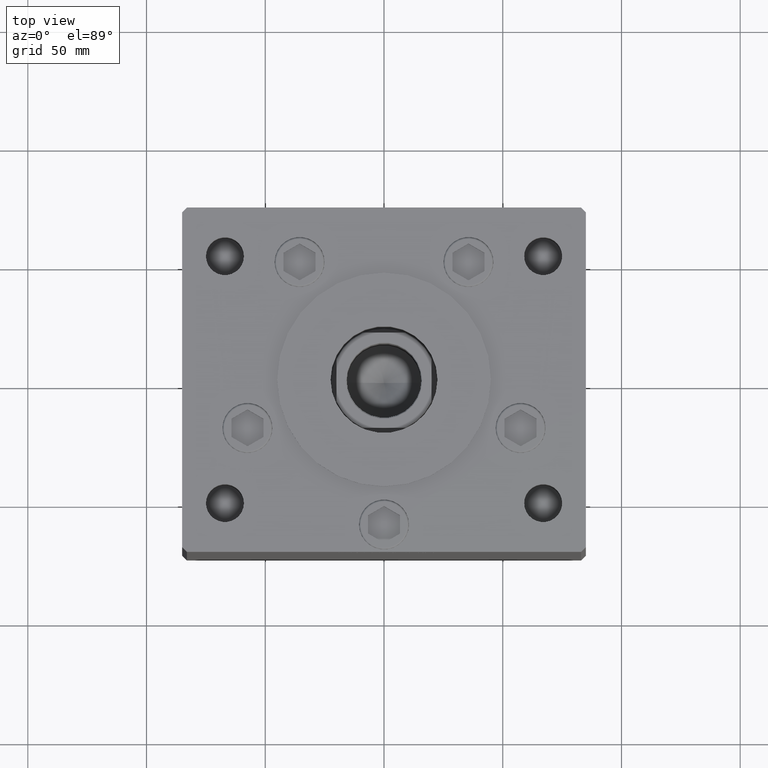
[diagram: clean part render]
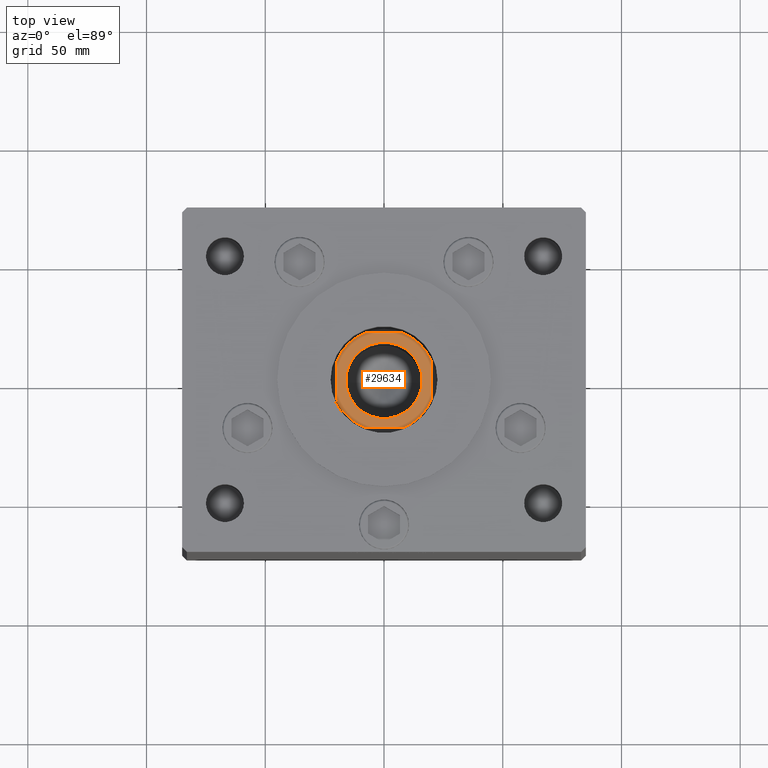
[diagram: same view with one face highlighted and labeled with its STEP entity id]
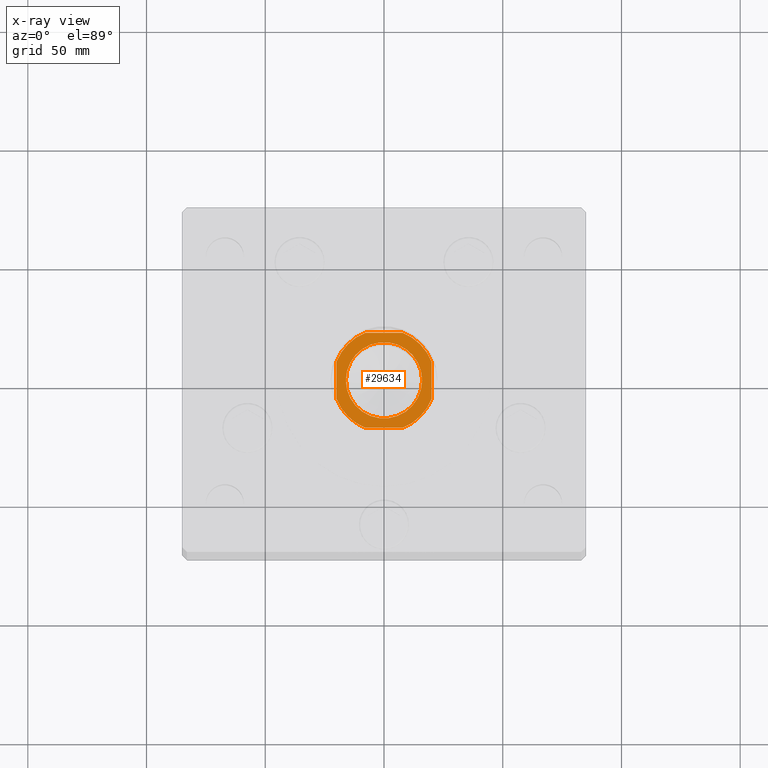
[diagram: x-ray of the same camera — body ghosted, the highlighted face saturated]
A machine part, top view. The second image highlights one B-rep face of the part: STEP entity #29634.
The next image is the same camera in x-ray: the body ghosted, the highlighted face saturated — about 0% of this face is hidden behind the body in this view.
In plain terms, the highlighted planar face has unit normal (0, 0, 1).
Its self-contained STEP definition (entity closure, byte-faithful):
#171 = EDGE_CURVE ( 'NONE', #46019, #31502, #42669, .T. ) ;
#1740 = VERTEX_POINT ( 'NONE', #17078 ) ;
#3692 = EDGE_CURVE ( 'NONE', #13541, #37752, #32314, .T. ) ;
#3745 = EDGE_CURVE ( 'NONE', #10714, #36882, #43618, .T. ) ;
#4019 = DIRECTION ( 'NONE',  ( 1.000000000000000000, 0.000000000000000000, 0.000000000000000000 ) ) ;
#4209 = DIRECTION ( 'NONE',  ( 1.000000000000000000, 0.000000000000000000, 0.000000000000000000 ) ) ;
#4545 = FACE_BOUND ( 'NONE', #17465, .T. ) ;
#5496 = DIRECTION ( 'NONE',  ( 1.000000000000000000, 0.000000000000000000, 0.000000000000000000 ) ) ;
#5533 = ORIENTED_EDGE ( 'NONE', *, *, #7708, .T. ) ;
#6002 = CIRCLE ( 'NONE', #35438, 21.50000000000000000 ) ;
#6373 = ORIENTED_EDGE ( 'NONE', *, *, #8855, .T. ) ;
#7563 = CARTESIAN_POINT ( 'NONE',  ( 0.000000000000000000, 0.000000000000000000, 159.0000000000000284 ) ) ;
#7708 = EDGE_CURVE ( 'NONE', #20339, #19896, #28484, .T. ) ;
#8855 = EDGE_CURVE ( 'NONE', #31502, #46019, #47001, .T. ) ;
#9140 = DIRECTION ( 'NONE',  ( -0.000000000000000000, 0.000000000000000000, 1.000000000000000000 ) ) ;
#9208 = AXIS2_PLACEMENT_3D ( 'NONE', #44353, #16400, #4019 ) ;
#9881 = DIRECTION ( 'NONE',  ( 0.000000000000000000, -0.000000000000000000, -1.000000000000000000 ) ) ;
#10714 = VERTEX_POINT ( 'NONE', #37508 ) ;
#10790 = VECTOR ( 'NONE', #24159, 1000.000000000000000 ) ;
#12502 = AXIS2_PLACEMENT_3D ( 'NONE', #17265, #9881, #41512 ) ;
#13541 = VERTEX_POINT ( 'NONE', #25004 ) ;
#13936 = ORIENTED_EDGE ( 'NONE', *, *, #15301, .T. ) ;
#15108 = CARTESIAN_POINT ( 'NONE',  ( 0.000000000000000000, 0.000000000000000000, 159.0000000000000284 ) ) ;
#15301 = EDGE_CURVE ( 'NONE', #19896, #40387, #45128, .T. ) ;
#15842 = ORIENTED_EDGE ( 'NONE', *, *, #44001, .T. ) ;
#15847 = AXIS2_PLACEMENT_3D ( 'NONE', #7563, #9140, #41542 ) ;
#15867 = ORIENTED_EDGE ( 'NONE', *, *, #171, .T. ) ;
#16400 = DIRECTION ( 'NONE',  ( -0.000000000000000000, 0.000000000000000000, 1.000000000000000000 ) ) ;
#17057 = DIRECTION ( 'NONE',  ( 1.000000000000000000, 0.000000000000000000, 0.000000000000000000 ) ) ;
#17078 = CARTESIAN_POINT ( 'NONE',  ( 20.00000000000000000, -7.889866919029739911, 159.0000000000000284 ) ) ;
#17265 = CARTESIAN_POINT ( 'NONE',  ( 0.000000000000000000, 0.000000000000000000, 159.0000000000000284 ) ) ;
#17465 = EDGE_LOOP ( 'NONE', ( #15867, #6373 ) ) ;
#18051 = LINE ( 'NONE', #37565, #47298 ) ;
#19896 = VERTEX_POINT ( 'NONE', #45536 ) ;
#20339 = VERTEX_POINT ( 'NONE', #39273 ) ;
#21159 = PLANE ( 'NONE',  #9208 ) ;
#21315 = CARTESIAN_POINT ( 'NONE',  ( 0.000000000000000000, 0.000000000000000000, 159.0000000000000284 ) ) ;
#22343 = CARTESIAN_POINT ( 'NONE',  ( 7.889866919029745240, -20.00000000000000000, 159.0000000000000284 ) ) ;
#23270 = DIRECTION ( 'NONE',  ( 0.000000000000000000, -0.000000000000000000, -1.000000000000000000 ) ) ;
#23486 = CIRCLE ( 'NONE', #51251, 21.50000000000000000 ) ;
#23572 = CARTESIAN_POINT ( 'NONE',  ( -20.00000000000000355, 20.00000000000000000, 159.0000000000000284 ) ) ;
#23639 = CARTESIAN_POINT ( 'NONE',  ( -20.00000000000000000, -20.00000000000000000, 159.0000000000000284 ) ) ;
#23745 = ORIENTED_EDGE ( 'NONE', *, *, #3745, .T. ) ;
#24159 = DIRECTION ( 'NONE',  ( 1.000000000000000000, 0.000000000000000000, 0.000000000000000000 ) ) ;
#24294 = DIRECTION ( 'NONE',  ( 8.673617379884035472E-17, -1.000000000000000000, 0.000000000000000000 ) ) ;
#24710 = DIRECTION ( 'NONE',  ( -0.000000000000000000, 0.000000000000000000, 1.000000000000000000 ) ) ;
#25004 = CARTESIAN_POINT ( 'NONE',  ( -7.889866919029745240, -20.00000000000000000, 159.0000000000000284 ) ) ;
#27218 = DIRECTION ( 'NONE',  ( 1.000000000000000000, 0.000000000000000000, 0.000000000000000000 ) ) ;
#27768 = VECTOR ( 'NONE', #39633, 1000.000000000000000 ) ;
#27925 = DIRECTION ( 'NONE',  ( -0.000000000000000000, 0.000000000000000000, 1.000000000000000000 ) ) ;
#28484 = CIRCLE ( 'NONE', #44484, 21.50000000000000000 ) ;
#29175 = CARTESIAN_POINT ( 'NONE',  ( 0.000000000000000000, 0.000000000000000000, 159.0000000000000284 ) ) ;
#29634 = ADVANCED_FACE ( 'NONE', ( #4545, #45146 ), #21159, .T. ) ;
#29655 = DIRECTION ( 'NONE',  ( -1.734723475976807094E-16, 1.000000000000000000, -0.000000000000000000 ) ) ;
#31502 = VERTEX_POINT ( 'NONE', #31857 ) ;
#31838 = CARTESIAN_POINT ( 'NONE',  ( 7.889866919029743464, 20.00000000000000000, 159.0000000000000284 ) ) ;
#31857 = CARTESIAN_POINT ( 'NONE',  ( -16.05000000000003624, 1.965558112631506149E-15, 159.0000000000000284 ) ) ;
#32314 = LINE ( 'NONE', #23639, #10790 ) ;
#33597 = EDGE_CURVE ( 'NONE', #37752, #1740, #23486, .T. ) ;
#35438 = AXIS2_PLACEMENT_3D ( 'NONE', #21315, #41594, #5496 ) ;
#36882 = VERTEX_POINT ( 'NONE', #31838 ) ;
#37508 = CARTESIAN_POINT ( 'NONE',  ( 20.00000000000000000, 7.889866919029748793, 159.0000000000000284 ) ) ;
#37565 = CARTESIAN_POINT ( 'NONE',  ( 19.99999999999999645, 20.00000000000000000, 159.0000000000000284 ) ) ;
#37752 = VERTEX_POINT ( 'NONE', #22343 ) ;
#38176 = EDGE_CURVE ( 'NONE', #36882, #20339, #43327, .T. ) ;
#39257 = ORIENTED_EDGE ( 'NONE', *, *, #41406, .T. ) ;
#39273 = CARTESIAN_POINT ( 'NONE',  ( -7.889866919029745240, 20.00000000000000000, 159.0000000000000284 ) ) ;
#39633 = DIRECTION ( 'NONE',  ( -1.000000000000000000, -0.000000000000000000, -0.000000000000000000 ) ) ;
#39779 = CARTESIAN_POINT ( 'NONE',  ( 0.000000000000000000, 0.000000000000000000, 159.0000000000000284 ) ) ;
#40152 = AXIS2_PLACEMENT_3D ( 'NONE', #15108, #23270, #27218 ) ;
#40387 = VERTEX_POINT ( 'NONE', #40606 ) ;
#40438 = ORIENTED_EDGE ( 'NONE', *, *, #3692, .T. ) ;
#40606 = CARTESIAN_POINT ( 'NONE',  ( -20.00000000000000355, -7.889866919029736358, 159.0000000000000284 ) ) ;
#41406 = EDGE_CURVE ( 'NONE', #40387, #13541, #6002, .T. ) ;
#41512 = DIRECTION ( 'NONE',  ( 1.000000000000000000, 0.000000000000000000, 0.000000000000000000 ) ) ;
#41542 = DIRECTION ( 'NONE',  ( 1.000000000000000000, 0.000000000000000000, 0.000000000000000000 ) ) ;
#41594 = DIRECTION ( 'NONE',  ( -0.000000000000000000, 0.000000000000000000, 1.000000000000000000 ) ) ;
#42669 = CIRCLE ( 'NONE', #40152, 16.05000000000003624 ) ;
#43231 = EDGE_LOOP ( 'NONE', ( #13936, #39257, #40438, #51226, #15842, #23745, #48841, #5533 ) ) ;
#43327 = LINE ( 'NONE', #23572, #27768 ) ;
#43618 = CIRCLE ( 'NONE', #15847, 21.50000000000000000 ) ;
#44001 = EDGE_CURVE ( 'NONE', #1740, #10714, #18051, .T. ) ;
#44235 = VECTOR ( 'NONE', #24294, 1000.000000000000000 ) ;
#44353 = CARTESIAN_POINT ( 'NONE',  ( 0.000000000000000000, 0.000000000000000000, 159.0000000000000284 ) ) ;
#44484 = AXIS2_PLACEMENT_3D ( 'NONE', #29175, #24710, #17057 ) ;
#44860 = CARTESIAN_POINT ( 'NONE',  ( -20.00000000000000355, 20.00000000000000000, 159.0000000000000284 ) ) ;
#45128 = LINE ( 'NONE', #44860, #44235 ) ;
#45146 = FACE_OUTER_BOUND ( 'NONE', #43231, .T. ) ;
#45536 = CARTESIAN_POINT ( 'NONE',  ( -20.00000000000000355, 7.889866919029741688, 159.0000000000000284 ) ) ;
#46019 = VERTEX_POINT ( 'NONE', #49244 ) ;
#47001 = CIRCLE ( 'NONE', #12502, 16.05000000000003624 ) ;
#47298 = VECTOR ( 'NONE', #29655, 1000.000000000000000 ) ;
#48841 = ORIENTED_EDGE ( 'NONE', *, *, #38176, .T. ) ;
#49244 = CARTESIAN_POINT ( 'NONE',  ( 16.05000000000003624, 0.000000000000000000, 159.0000000000000284 ) ) ;
#51226 = ORIENTED_EDGE ( 'NONE', *, *, #33597, .T. ) ;
#51251 = AXIS2_PLACEMENT_3D ( 'NONE', #39779, #27925, #4209 ) ;